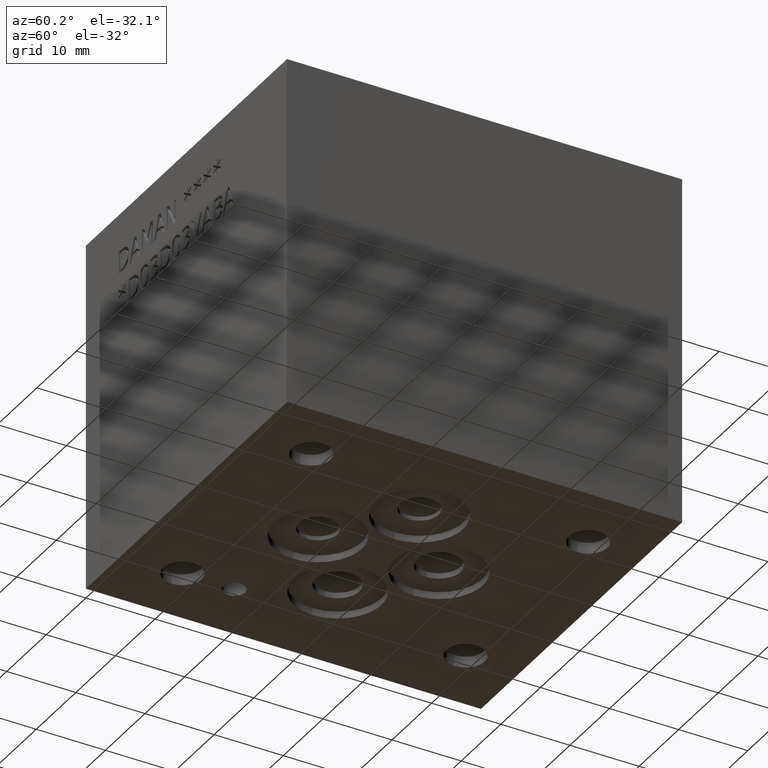
[diagram: clean part render]
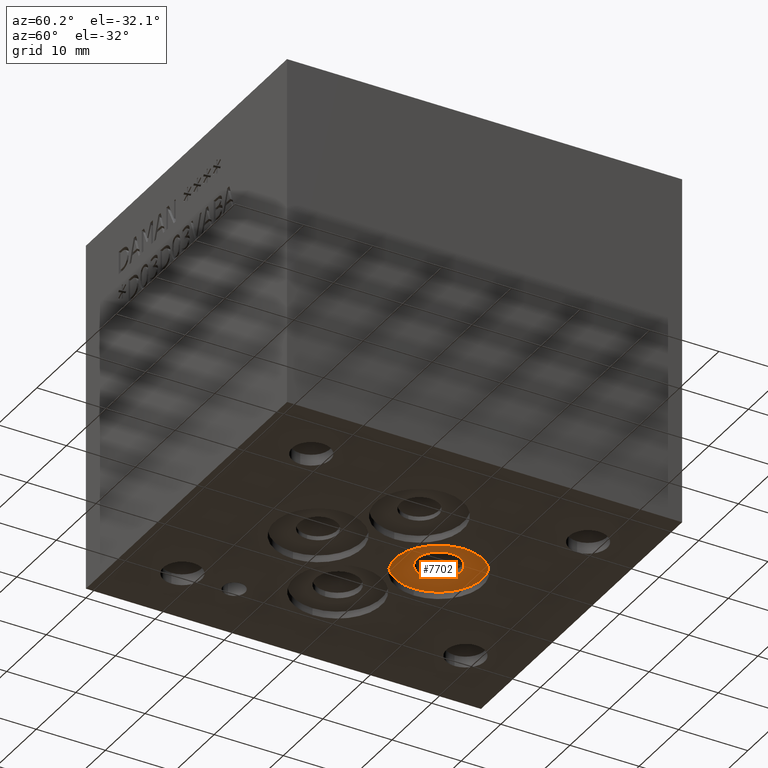
[diagram: same view with one face highlighted and labeled with its STEP entity id]
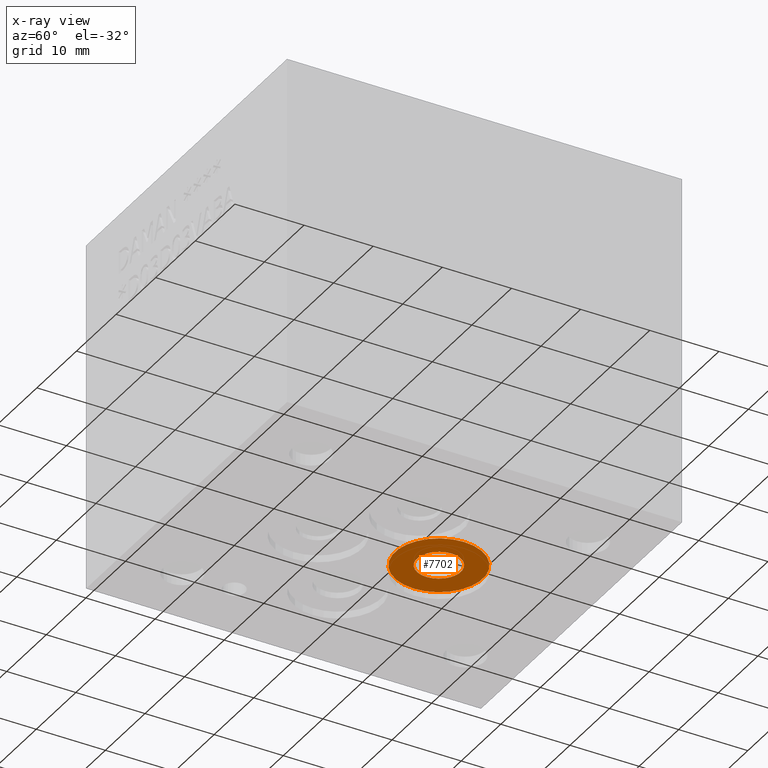
[diagram: x-ray of the same camera — body ghosted, the highlighted face saturated]
A machine part, auxiliary view. The second image highlights one B-rep face of the part: STEP entity #7702.
The next image is the same camera in x-ray: the body ghosted, the highlighted face saturated — about 0% of this face is hidden behind the body in this view.
In plain terms, the highlighted planar face has unit normal (0, 0, -1).
Its self-contained STEP definition (entity closure, byte-faithful):
#41=CIRCLE('',#8009,3.175);
#44=CIRCLE('',#8013,6.35);
#45=CIRCLE('',#8014,6.35);
#469=FACE_BOUND('',#1256,.T.);
#835=FACE_OUTER_BOUND('',#1255,.T.);
#1255=EDGE_LOOP('',(#6533,#6534));
#1256=EDGE_LOOP('',(#6535));
#3501=VERTEX_POINT('',#12865);
#3504=VERTEX_POINT('',#12873);
#3505=VERTEX_POINT('',#12875);
#4536=EDGE_CURVE('',#3501,#3501,#41,.T.);
#4541=EDGE_CURVE('',#3505,#3504,#44,.T.);
#4542=EDGE_CURVE('',#3504,#3505,#45,.T.);
#6533=ORIENTED_EDGE('',*,*,#4541,.T.);
#6534=ORIENTED_EDGE('',*,*,#4542,.T.);
#6535=ORIENTED_EDGE('',*,*,#4536,.T.);
#7019=PLANE('',#8015);
#7702=ADVANCED_FACE('',(#835,#469),#7019,.T.);
#8009=AXIS2_PLACEMENT_3D('',#12866,#9363,#9364);
#8013=AXIS2_PLACEMENT_3D('',#12876,#9373,#9374);
#8014=AXIS2_PLACEMENT_3D('',#12877,#9375,#9376);
#8015=AXIS2_PLACEMENT_3D('',#12878,#9377,#9378);
#9363=DIRECTION('center_axis',(0.,0.,1.));
#9364=DIRECTION('ref_axis',(1.,0.,0.));
#9373=DIRECTION('center_axis',(0.,0.,-1.));
#9374=DIRECTION('ref_axis',(1.,0.,0.));
#9375=DIRECTION('center_axis',(0.,0.,-1.));
#9376=DIRECTION('ref_axis',(1.,0.,0.));
#9377=DIRECTION('center_axis',(0.,0.,-1.));
#9378=DIRECTION('ref_axis',(1.,0.,0.));
#12865=CARTESIAN_POINT('',(22.225,36.5125,1.016));
#12866=CARTESIAN_POINT('Origin',(25.4,36.5125,1.016));
#12873=CARTESIAN_POINT('',(19.05,36.5125,1.016));
#12875=CARTESIAN_POINT('',(31.75,36.5125,1.016));
#12876=CARTESIAN_POINT('Origin',(25.4,36.5125,1.016));
#12877=CARTESIAN_POINT('Origin',(25.4,36.5125,1.016));
#12878=CARTESIAN_POINT('Origin',(25.4,36.5125,1.016));